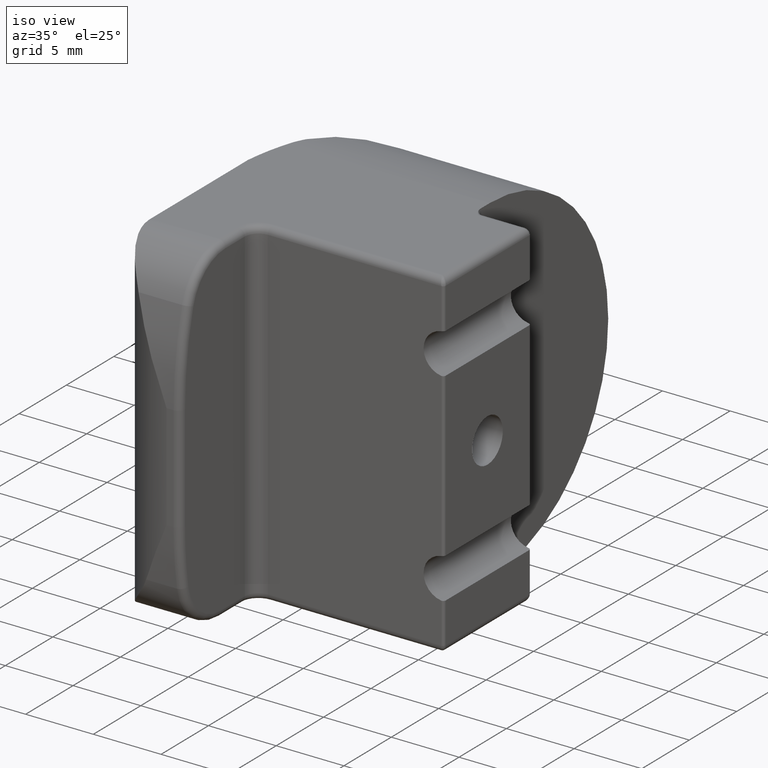
[diagram: clean part render]
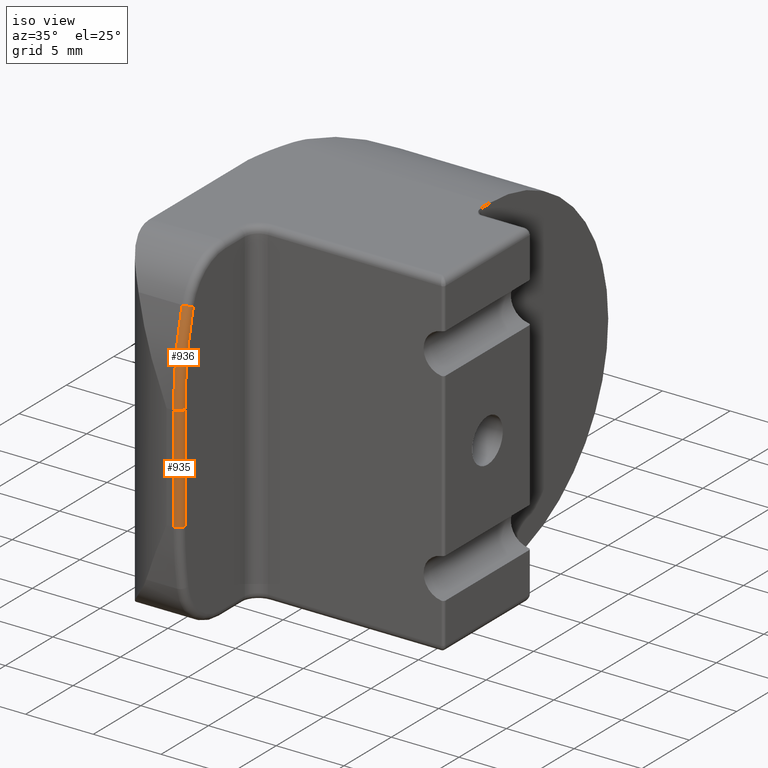
[diagram: same view with one multi-face feature highlighted, each face labeled with its STEP entity id]
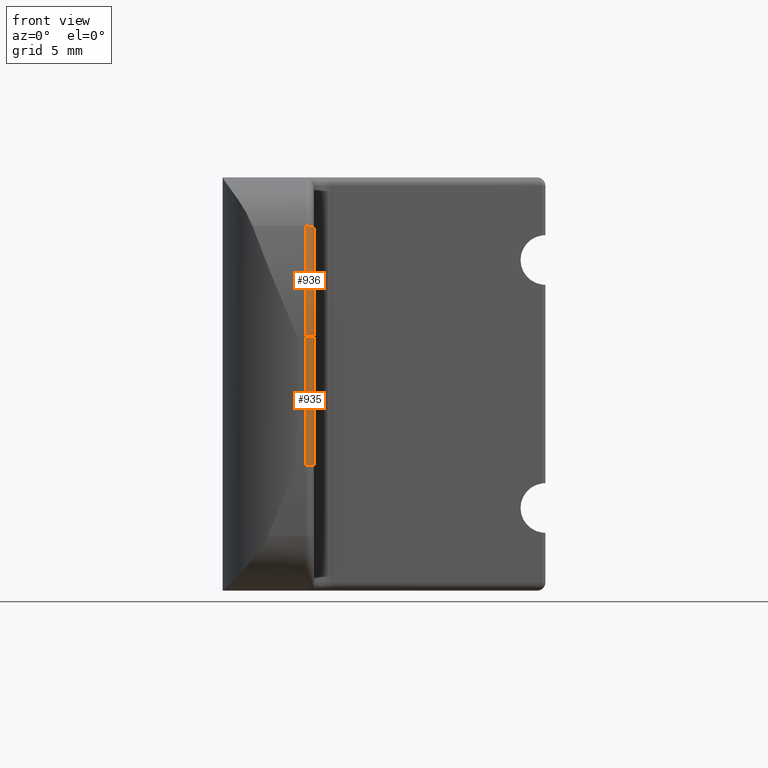
[diagram: same view with one multi-face feature highlighted, each face labeled with its STEP entity id]
A machine part, iso view. The highlighted faces form ONE feature: a constant-radius fillet chain: 2 tangent blend faces with common blend radius 0.5 mm. The faces share edges in the B-rep.
A second angle (front view) of the same feature is appended — it is thin or edge-on in the first view.
Their STEP definitions:
[1] entity #936 (Torus):
#232=FACE_OUTER_BOUND('',#290,.T.);
#290=EDGE_LOOP('',(#689,#690,#691,#692));
#374=CIRCLE('',#1041,0.5);
#375=CIRCLE('',#1043,0.500000000000002);
#376=CIRCLE('',#1044,25.3649241363035);
#377=CIRCLE('',#1045,24.8649241363035);
#428=VERTEX_POINT('',#1600);
#429=VERTEX_POINT('',#1601);
#430=VERTEX_POINT('',#1606);
#431=VERTEX_POINT('',#1607);
#528=EDGE_CURVE('',#428,#429,#374,.T.);
#531=EDGE_CURVE('',#430,#431,#375,.T.);
#532=EDGE_CURVE('',#431,#429,#376,.T.);
#533=EDGE_CURVE('',#428,#430,#377,.T.);
#689=ORIENTED_EDGE('',*,*,#531,.T.);
#690=ORIENTED_EDGE('',*,*,#532,.T.);
#691=ORIENTED_EDGE('',*,*,#528,.F.);
#692=ORIENTED_EDGE('',*,*,#533,.T.);
#917=TOROIDAL_SURFACE('',#1042,24.8649241363034,0.5);
#936=ADVANCED_FACE('',(#232),#917,.T.);
#1041=AXIS2_PLACEMENT_3D('',#1602,#1208,#1209);
#1042=AXIS2_PLACEMENT_3D('',#1605,#1212,#1213);
#1043=AXIS2_PLACEMENT_3D('',#1608,#1214,#1215);
#1044=AXIS2_PLACEMENT_3D('',#1609,#1216,#1217);
#1045=AXIS2_PLACEMENT_3D('',#1610,#1218,#1219);
#1208=DIRECTION('center_axis',(0.,0.,-1.));
#1209=DIRECTION('ref_axis',(1.,0.,0.));
#1212=DIRECTION('center_axis',(1.,3.26536183713277E-16,0.));
#1213=DIRECTION('ref_axis',(0.,0.,-1.));
#1214=DIRECTION('center_axis',(0.,-0.263353476133846,-0.964699407384611));
#1215=DIRECTION('ref_axis',(1.,0.,0.));
#1216=DIRECTION('center_axis',(1.,3.26536183713277E-16,0.));
#1217=DIRECTION('ref_axis',(3.22803835825065E-16,-0.991135562722025,0.132854417719901));
#1218=DIRECTION('center_axis',(-1.,-3.26536183713277E-16,0.));
#1219=DIRECTION('ref_axis',(3.23641624193761E-16,-0.991135562722025,0.132854417719901));
#1600=CARTESIAN_POINT('',(-7.40000000000004,-11.9,2.87446327187621));
#1601=CARTESIAN_POINT('',(-7.90000000000004,-12.4000000000001,2.87446327187621));
#1602=CARTESIAN_POINT('Origin',(-7.90000000000004,-11.9,2.87446327187621));
#1605=CARTESIAN_POINT('Origin',(-7.90000000000005,12.9649241363034,2.87446327187621));
#1606=CARTESIAN_POINT('',(-7.40000000000004,-11.0222534426519,9.42272747697602));
#1607=CARTESIAN_POINT('',(-7.90000000000004,-11.5046031463442,9.55440421504294));
#1608=CARTESIAN_POINT('Origin',(-7.90000000000004,-11.0222534426519,9.42272747697602));
#1609=CARTESIAN_POINT('Origin',(-7.90000000000005,12.9649241363034,2.87446327187621));
#1610=CARTESIAN_POINT('Origin',(-7.40000000000005,12.9649241363034,2.87446327187621));
[2] entity #935 (Cylinder):
#61=LINE('',#1603,#130);
#62=LINE('',#1604,#131);
#130=VECTOR('',#1210,10.);
#131=VECTOR('',#1211,10.);
#192=CYLINDRICAL_SURFACE('',#1040,0.5);
#231=FACE_OUTER_BOUND('',#289,.T.);
#289=EDGE_LOOP('',(#685,#686,#687,#688));
#371=CIRCLE('',#1037,0.500000000000002);
#374=CIRCLE('',#1041,0.5);
#426=VERTEX_POINT('',#1594);
#427=VERTEX_POINT('',#1595);
#428=VERTEX_POINT('',#1600);
#429=VERTEX_POINT('',#1601);
#525=EDGE_CURVE('',#426,#427,#371,.T.);
#528=EDGE_CURVE('',#428,#429,#374,.T.);
#529=EDGE_CURVE('',#429,#427,#61,.T.);
#530=EDGE_CURVE('',#426,#428,#62,.T.);
#685=ORIENTED_EDGE('',*,*,#528,.T.);
#686=ORIENTED_EDGE('',*,*,#529,.T.);
#687=ORIENTED_EDGE('',*,*,#525,.F.);
#688=ORIENTED_EDGE('',*,*,#530,.T.);
#935=ADVANCED_FACE('',(#231),#192,.T.);
#1037=AXIS2_PLACEMENT_3D('',#1596,#1200,#1201);
#1040=AXIS2_PLACEMENT_3D('',#1599,#1206,#1207);
#1041=AXIS2_PLACEMENT_3D('',#1602,#1208,#1209);
#1200=DIRECTION('center_axis',(0.,2.22044604925029E-15,-1.));
#1201=DIRECTION('ref_axis',(1.,0.,0.));
#1206=DIRECTION('center_axis',(0.,0.,1.));
#1207=DIRECTION('ref_axis',(0.707106781186544,-0.707106781186551,0.));
#1208=DIRECTION('center_axis',(0.,0.,-1.));
#1209=DIRECTION('ref_axis',(1.,0.,0.));
#1210=DIRECTION('',(0.,0.,-1.));
#1211=DIRECTION('',(0.,0.,1.));
#1594=CARTESIAN_POINT('',(-7.40000000000004,-11.9,-4.92553672812379));
#1595=CARTESIAN_POINT('',(-7.90000000000004,-12.4000000000001,-4.92553672812379));
#1596=CARTESIAN_POINT('Origin',(-7.90000000000004,-11.9,-4.92553672812379));
#1599=CARTESIAN_POINT('Origin',(-7.90000000000004,-11.9,0.));
#1600=CARTESIAN_POINT('',(-7.40000000000004,-11.9,2.87446327187621));
#1601=CARTESIAN_POINT('',(-7.90000000000004,-12.4000000000001,2.87446327187621));
#1602=CARTESIAN_POINT('Origin',(-7.90000000000004,-11.9,2.87446327187621));
#1603=CARTESIAN_POINT('',(-7.90000000000004,-12.4000000000001,0.));
#1604=CARTESIAN_POINT('',(-7.40000000000004,-11.9,0.));